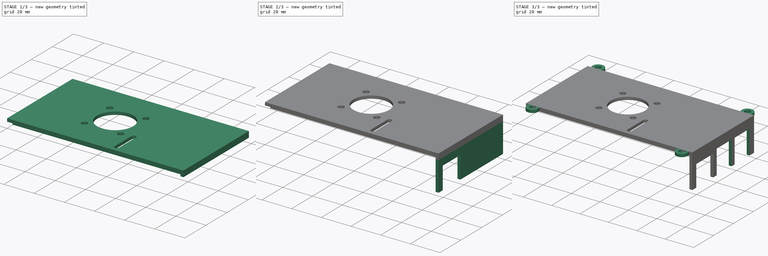
[diagram: build sequence overview — one tinted view per stage of 3, left to right]
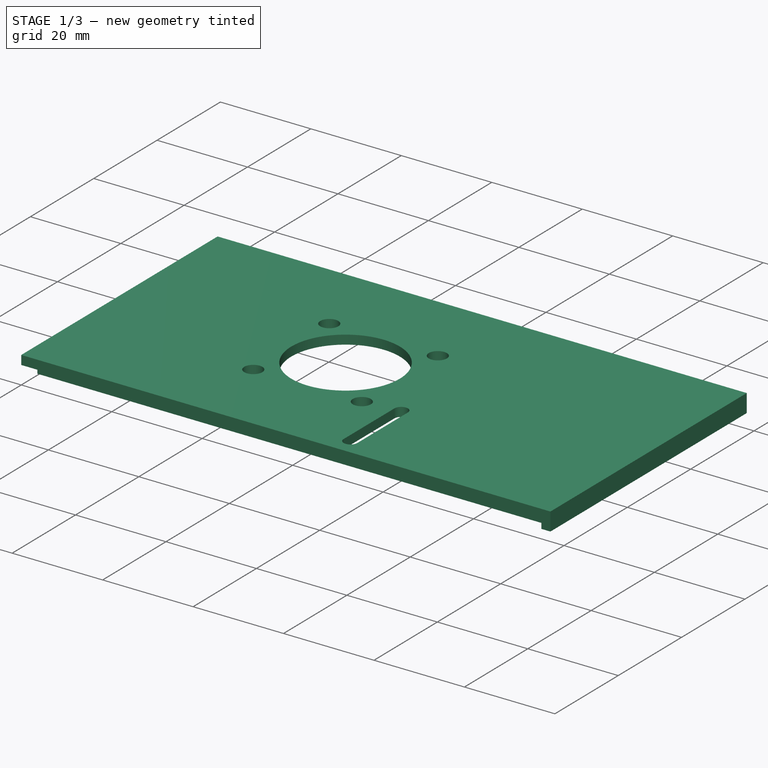
[diagram: stage 1 of 3 — iso view after this stage's code; geometry added in this stage tinted green]
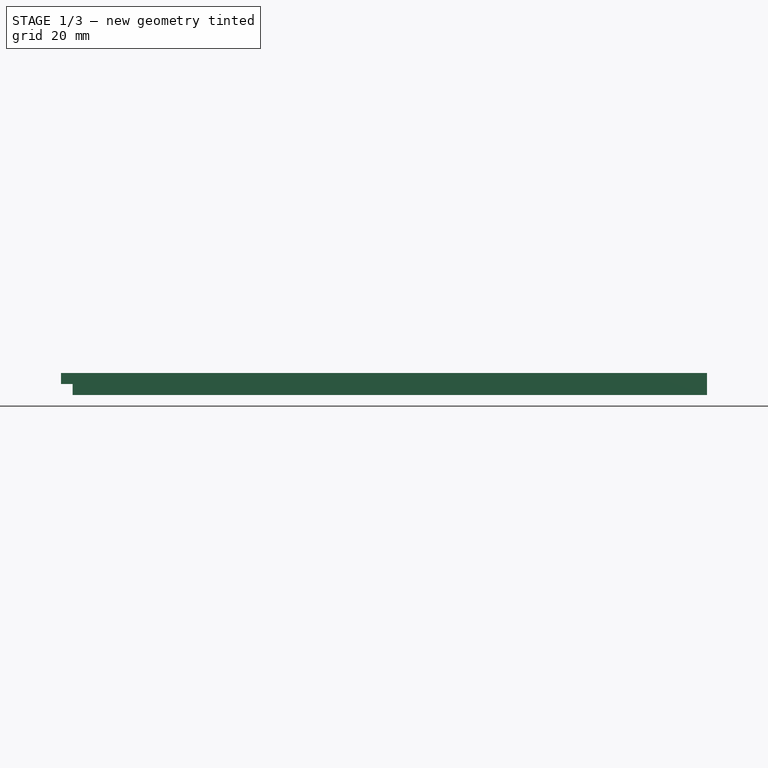
[diagram: stage 1 of 3 — front view after this stage's code; geometry added in this stage tinted green]
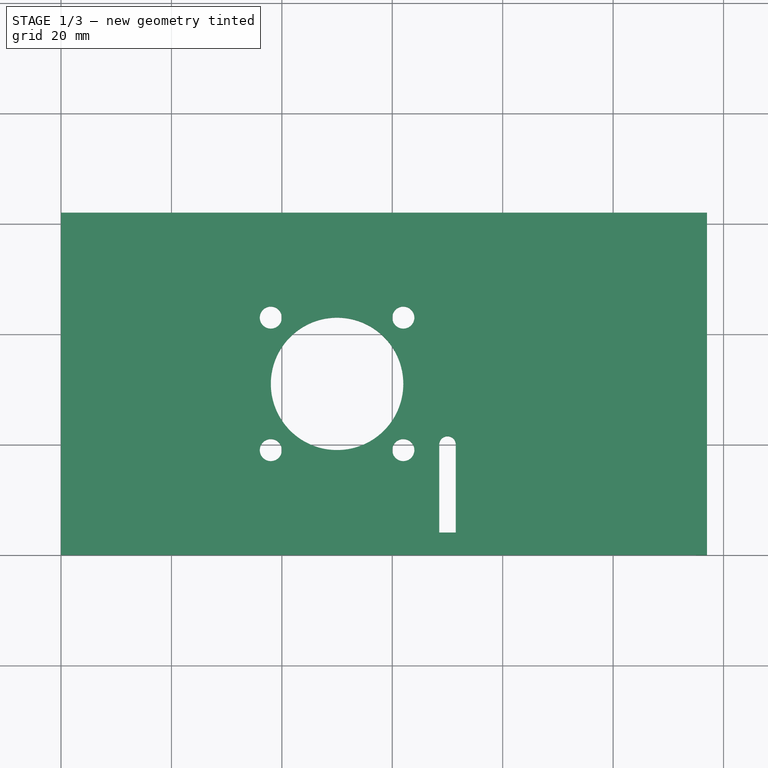
[diagram: stage 1 of 3 — top view after this stage's code; geometry added in this stage tinted green]
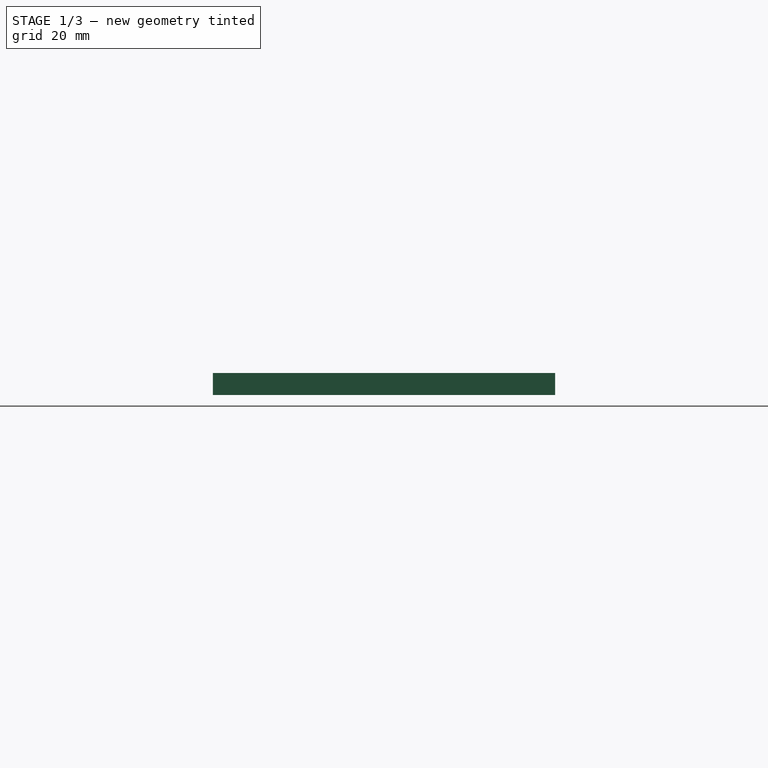
[diagram: stage 1 of 3 — right view after this stage's code; geometry added in this stage tinted green]
FCSTD DOCUMENT  (FreeCAD 0.19R23141 (Git))
Label: Lid
License: All rights reserved
LicenseURL: http://en.wikipedia.org/wiki/All_rights_reserved
objects: Sketcher::SketchObject×9, PartDesign::Pad×4, PartDesign::Pocket×4, PartDesign::Body×1
note: 26 computed .brp shape members not serialized (recipe doc carries the construction recipe); baked Part::Feature solids carry a one-line shape summary decoded from their .brp

FEATURE [Sketcher::SketchObject] Sketch
  MapMode = 5
  Support = -> [XY_Plane]
  sketch-geometry (13):
    g0: LineSegment StartX=0 StartY=0 StartZ=0 EndX=117 EndY=0 EndZ=0
    g1: LineSegment StartX=117 StartY=0 StartZ=0 EndX=117 EndY=62 EndZ=0
    g2: LineSegment StartX=117 StartY=62 StartZ=0 EndX=0 EndY=62 EndZ=0
    g3: LineSegment StartX=0 StartY=62 StartZ=0 EndX=0 EndY=0 EndZ=0
    g4: Circle CenterX=38 CenterY=43 CenterZ=0 NormalX=0 NormalY=0 NormalZ=1 AngleXU=0 Radius=2
    g5: Circle CenterX=62 CenterY=43 CenterZ=0 NormalX=0 NormalY=0 NormalZ=1 AngleXU=0 Radius=2
    g6: Circle CenterX=38 CenterY=19 CenterZ=0 NormalX=0 NormalY=0 NormalZ=1 AngleXU=0 Radius=2
    g7: Circle CenterX=62 CenterY=19 CenterZ=0 NormalX=0 NormalY=0 NormalZ=1 AngleXU=0 Radius=2
    g8: Circle CenterX=50 CenterY=31 CenterZ=0 NormalX=0 NormalY=0 NormalZ=1 AngleXU=0 Radius=12
    g9: ArcOfCircle CenterX=70 CenterY=20 CenterZ=0 NormalX=0 NormalY=0 NormalZ=1 AngleXU=0 Radius=1.5 StartAngle=-9.68e-14 EndAngle=3.14159
    g10: ArcOfCircle CenterX=70 CenterY=4 CenterZ=0 NormalX=0 NormalY=0 NormalZ=1 AngleXU=0 Radius=1.5 StartAngle=3.14159 EndAngle=6.28319
    g11: LineSegment StartX=68.5 StartY=20 StartZ=0 EndX=68.5 EndY=4 EndZ=0
    g12: LineSegment StartX=71.5 StartY=20 StartZ=0 EndX=71.5 EndY=4 EndZ=0
  constraints (36):
    c: Coincident(g0,g1)
    c: Coincident(g1,g2)
    c: Coincident(g2,g3)
    c: Coincident(g3,g0)
    c: Horizontal(g0)
    c: Horizontal(g2)
    c: Vertical(g1)
    c: Vertical(g3)
    c: Coincident(g0,g-1)
    c: DistanceX(g2,g2) = 117
    c: DistanceY(g3,g3) = 62
    c: Diameter(g4) = 4
    c: Equal(g4,g5) = 4
    c: Equal(g4,g6) = 4
    c: Equal(g4,g7) = 4
    c: DistanceX(g4,g5) = 24
    c: DistanceX(g6,g7) = 24
    c: DistanceY(g6,g4) = 24
    c: DistanceY(g7,g5) = 24
    c: Diameter(g8) = 24
    c: DistanceX(g8,g5) = 12
    c: DistanceY(g8,g5) = 12
    c: DistanceX(g8,g7) = 12
    c: DistanceY(g8,g4) = 12
    c: DistanceX(g7,g0) = 55
    c: Tangent(g9,g12)
    c: Tangent(g9,g11)
    c: Tangent(g11,g10)
    c: Tangent(g12,g10)
    c: Vertical(g11)
    c: Equal(g9,g10)
    c: DistanceX(g9,g9) = 3
    c: DistanceY(g10,g9) = 16
    c: DistanceX(g9,g1) = 47
    c: DistanceY(g0,g8) = 31
    c: DistanceY(g0,g10) = 4
FEATURE [PartDesign::Pad] Pad  label="Main Body with holes"
  Direction = (1,1,1)
  Length = 2
  Length2 = 100
  Profile = -> Sketch
  Type = 0
FEATURE [Sketcher::SketchObject] Sketch001
  ExternalGeometry = -> [Pad]
  MapMode = 5
  Placement = pos=(0,0,0) rot=(1,0,0;3.14159rad)
  Support = -> [Pad]
  sketch-geometry (16):
    g0: LineSegment StartX=2.1 StartY=-2.1 StartZ=0 EndX=117 EndY=-2.1 EndZ=0
    g1: LineSegment StartX=117 StartY=-2.1 StartZ=0 EndX=117 EndY=-59.9 EndZ=0
    g2: LineSegment StartX=117 StartY=-59.9 StartZ=0 EndX=2.1 EndY=-59.9 EndZ=0
    g3: LineSegment StartX=2.1 StartY=-59.9 StartZ=0 EndX=2.1 EndY=-2.1 EndZ=0
    g4: LineSegment StartX=4.1 StartY=-4.1 StartZ=0 EndX=115 EndY=-4.1 EndZ=0
    g5: LineSegment StartX=115 StartY=-4.1 StartZ=0 EndX=115 EndY=-57.9 EndZ=0
    g6: LineSegment StartX=115 StartY=-57.9 StartZ=0 EndX=4.1 EndY=-57.9 EndZ=0
    g7: LineSegment StartX=4.1 StartY=-57.9 StartZ=0 EndX=4.1 EndY=-4.1 EndZ=0
    g8: LineSegment StartX=115 StartY=0 StartZ=0 EndX=117 EndY=0 EndZ=0
    g9: LineSegment StartX=117 StartY=0 StartZ=0 EndX=117 EndY=-2.1 EndZ=0
    g10: LineSegment StartX=117 StartY=-2.1 StartZ=0 EndX=115 EndY=-2.1 EndZ=0
    g11: LineSegment StartX=115 StartY=-2.1 StartZ=0 EndX=115 EndY=0 EndZ=0
    g12: LineSegment StartX=115 StartY=-59.9 StartZ=0 EndX=117 EndY=-59.9 EndZ=0
    g13: LineSegment StartX=117 StartY=-59.9 StartZ=0 EndX=117 EndY=-62 EndZ=0
    g14: LineSegment StartX=117 StartY=-62 StartZ=0 EndX=115 EndY=-62 EndZ=0
    g15: LineSegment StartX=115 StartY=-62 StartZ=0 EndX=115 EndY=-59.9 EndZ=0
  constraints (46):
    c: Coincident(g0,g1)
    c: Coincident(g1,g2)
    c: Coincident(g2,g3)
    c: Coincident(g3,g0)
    c: Horizontal(g0)
    c: Horizontal(g2)
    c: Vertical(g1)
    c: Vertical(g3)
    c: Coincident(g4,g5)
    c: Coincident(g5,g6)
    c: Coincident(g6,g7)
    c: Coincident(g7,g4)
    c: Horizontal(g4)
    c: Horizontal(g6)
    c: Vertical(g5)
    c: Vertical(g7)
    c: DistanceX(g-1,g0) = 2.1
    c: DistanceY(g0,g-1) = 2.1
    c: DistanceX(g0,g4) = 2
    c: DistanceY(g4,g0) = 2
    c: DistanceY(g-3,g2) = 2.1
    c: DistanceY(g2,g6) = 2
    c: DistanceX(g0,g-4) = 0
    c: DistanceX(g4,g0) = 2
    c: Coincident(g8,g9)
    c: Coincident(g9,g10)
    c: Coincident(g10,g11)
    c: Coincident(g11,g8)
    c: Horizontal(g8)
    c: Horizontal(g10)
    c: Vertical(g9)
    c: Vertical(g11)
    c: Coincident(g12,g13)
    c: Coincident(g13,g14)
    c: Coincident(g14,g15)
    c: Coincident(g15,g12)
    c: Horizontal(g12)
    c: Horizontal(g14)
    c: Vertical(g13)
    c: Vertical(g15)
    c: DistanceX(g8,g8) = 2
    c: DistanceY(g9,g9) = 2.1
    c: Coincident(g8,g-4)
    c: DistanceY(g13,g13) = 2.1
    c: DistanceX(g14,g13) = 2
    c: Coincident(g1,g12)
FEATURE [PartDesign::Pad] Pad001  label="Inner Lip"
  BaseFeature = -> Pad
  Direction = (1,1,1)
  Length = 2
  Length2 = 100
  Profile = -> Sketch001
  Type = 0
FEATURE [Sketcher::SketchObject] Sketch003
  MapMode = 5
  Placement = pos=(0,0,2) rot=(0,0,1;0rad)
  sketch-geometry (4):
    g0: Circle CenterX=6 CenterY=64 CenterZ=0 NormalX=0 NormalY=0 NormalZ=1 AngleXU=0 Radius=2
    g1: Circle CenterX=113 CenterY=64 CenterZ=0 NormalX=0 NormalY=0 NormalZ=1 AngleXU=0 Radius=2
    g2: Circle CenterX=6 CenterY=-2 CenterZ=0 NormalX=0 NormalY=0 NormalZ=1 AngleXU=0 Radius=2
    g3: Circle CenterX=113 CenterY=-2 CenterZ=0 NormalX=0 NormalY=0 NormalZ=1 AngleXU=0 Radius=2
  constraints (4):
    c: Diameter(g0) = 4
    c: Diameter(g1) = 4
    c: Diameter(g3) = 4
    c: Diameter(g2) = 4
FEATURE [PartDesign::Pocket] Pocket  label="Bolt Ear Holes"
  BaseFeature = -> Pad001
  Length = 2
  Length2 = 100
  Profile = -> Sketch003
  Type = 0
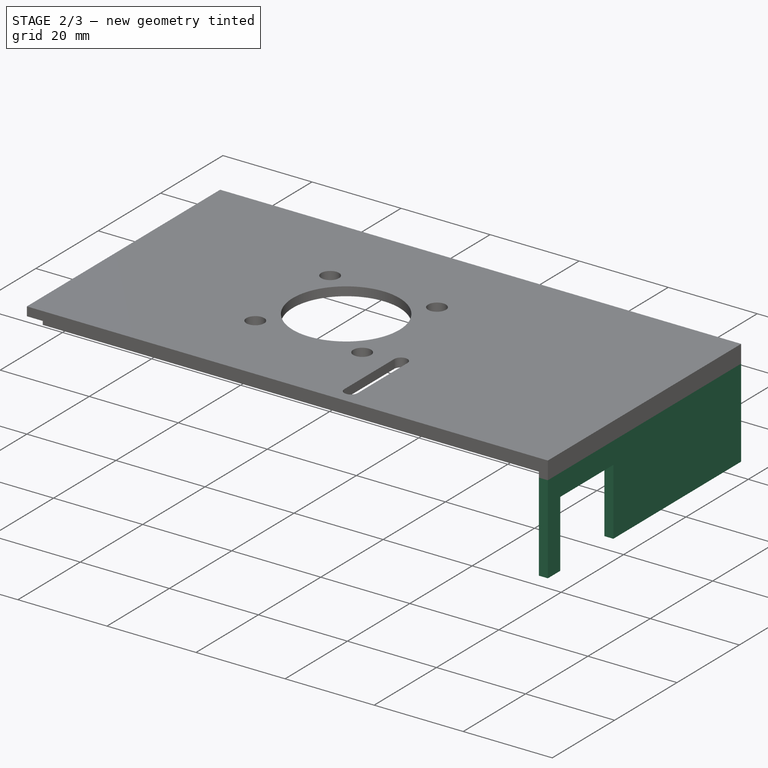
[diagram: stage 2 of 3 — iso view after this stage's code; geometry added in this stage tinted green]
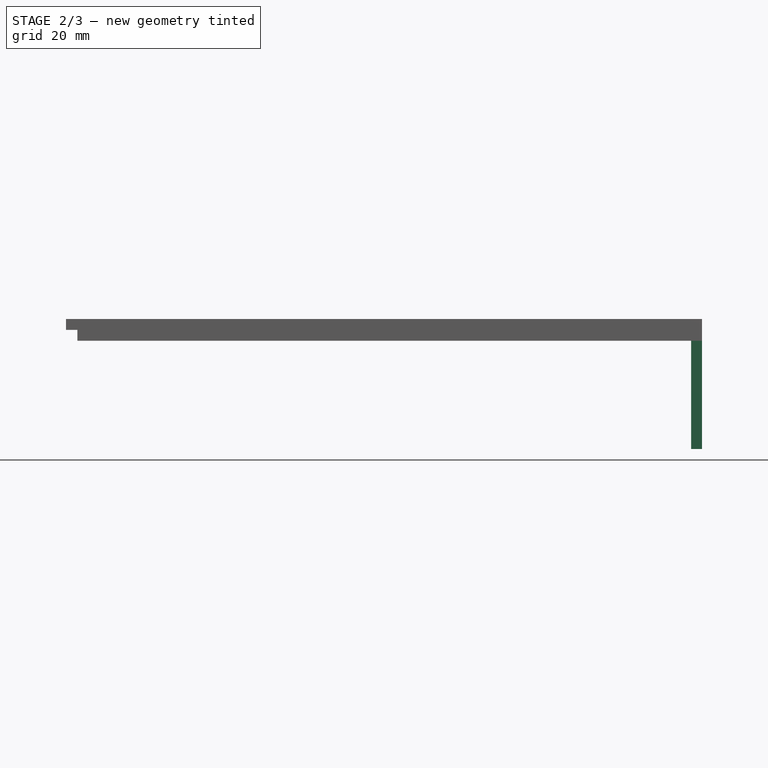
[diagram: stage 2 of 3 — front view after this stage's code; geometry added in this stage tinted green]
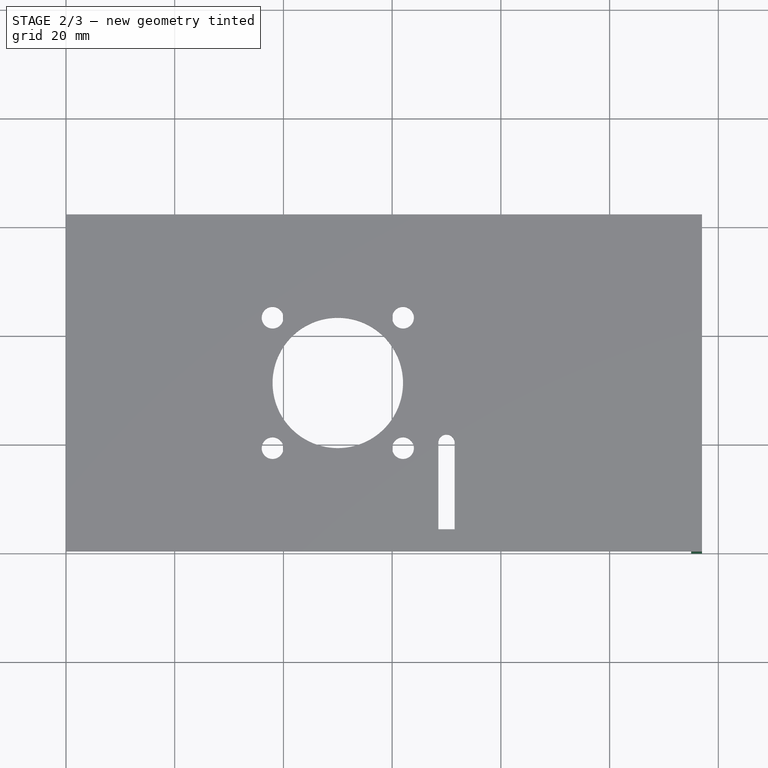
[diagram: stage 2 of 3 — top view after this stage's code; geometry added in this stage tinted green]
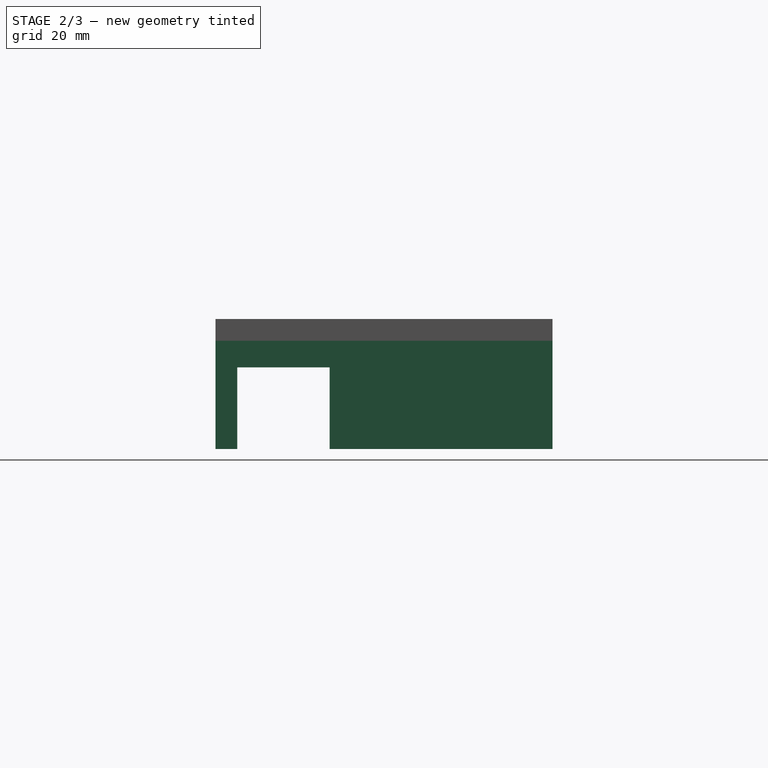
[diagram: stage 2 of 3 — right view after this stage's code; geometry added in this stage tinted green]
FEATURE [Sketcher::SketchObject] Sketch004
  MapMode = 5
  Placement = pos=(68.5,0,0) rot=(0.57735,0.57735,0.57735;2.0944rad)
  Support = -> [Pad001]
FEATURE [Sketcher::SketchObject] Sketch005
  ExternalGeometry = -> [Pad001]
  MapMode = 5
  Placement = pos=(0,0,-2) rot=(1,0,0;3.14159rad)
  Support = -> [Pad001]
  sketch-geometry (4):
    g0: LineSegment StartX=115 StartY=0 StartZ=0 EndX=117 EndY=0 EndZ=0
    g1: LineSegment StartX=117 StartY=0 StartZ=0 EndX=117 EndY=-62 EndZ=0
    g2: LineSegment StartX=117 StartY=-62 StartZ=0 EndX=115 EndY=-62 EndZ=0
    g3: LineSegment StartX=115 StartY=-62 StartZ=0 EndX=115 EndY=0 EndZ=0
  constraints (11):
    c: Coincident(g0,g1)
    c: Coincident(g1,g2)
    c: Coincident(g2,g3)
    c: Coincident(g3,g0)
    c: Horizontal(g0)
    c: Horizontal(g2)
    c: Vertical(g1)
    c: Vertical(g3)
    c: DistanceX(g2,g2) = 2
    c: DistanceY(g1,g1) = 62
    c: Coincident(g0,g-5)
FEATURE [PartDesign::Pad] Pad002  label="Front Panel"
  BaseFeature = -> Pocket
  Direction = (1,1,1)
  Length = 19.9
  Length2 = 100
  Profile = -> Sketch005
  Type = 0
FEATURE [Sketcher::SketchObject] Sketch006
  ExternalGeometry = -> [Pad002]
  MapMode = 5
  Placement = pos=(0,0,-21.9) rot=(1,0,0;3.14159rad)
  Support = -> [Pad002]
  sketch-geometry (4):
    g0: LineSegment StartX=115 StartY=-4 StartZ=0 EndX=117 EndY=-4 EndZ=0
    g1: LineSegment StartX=117 StartY=-4 StartZ=0 EndX=117 EndY=-21 EndZ=0
    g2: LineSegment StartX=117 StartY=-21 StartZ=0 EndX=115 EndY=-21 EndZ=0
    g3: LineSegment StartX=115 StartY=-21 StartZ=0 EndX=115 EndY=-4 EndZ=0
  constraints (12):
    c: Coincident(g0,g1)
    c: Coincident(g1,g2)
    c: Coincident(g2,g3)
    c: Coincident(g3,g0)
    c: Horizontal(g0)
    c: Horizontal(g2)
    c: Vertical(g1)
    c: Vertical(g3)
    c: DistanceX(g0,g0) = 2
    c: DistanceY(g1,g1) = 17
    c: DistanceX(g-3,g0) = 0
    c: DistanceY(g0,g-3) = 4
FEATURE [PartDesign::Pocket] Pocket001  label="Ethernet Cutout"
  BaseFeature = -> Pad002
  Length = 15
  Length2 = 100
  Profile = -> Sketch006
  Type = 0
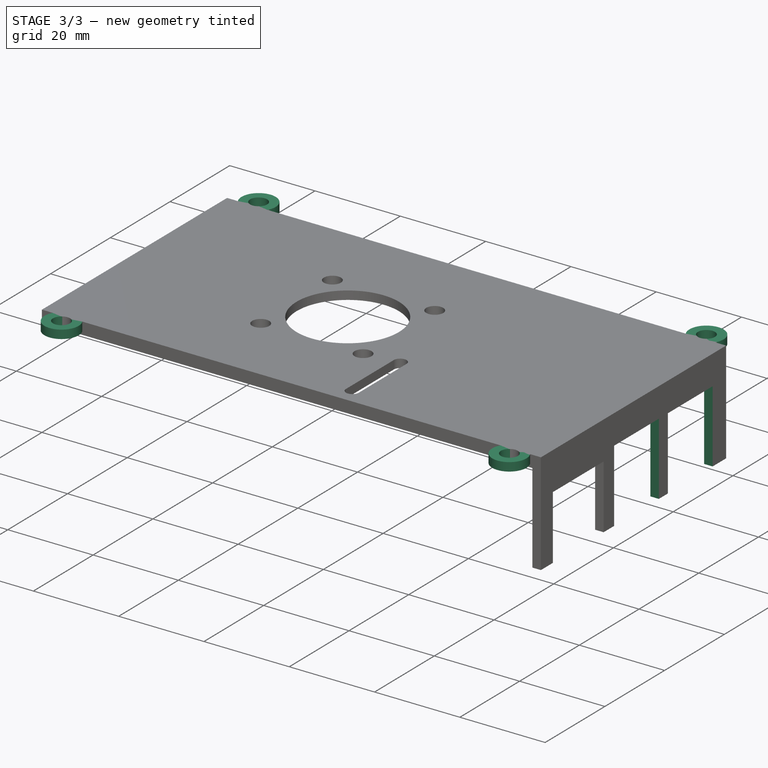
[diagram: stage 3 of 3 — iso view after this stage's code; geometry added in this stage tinted green]
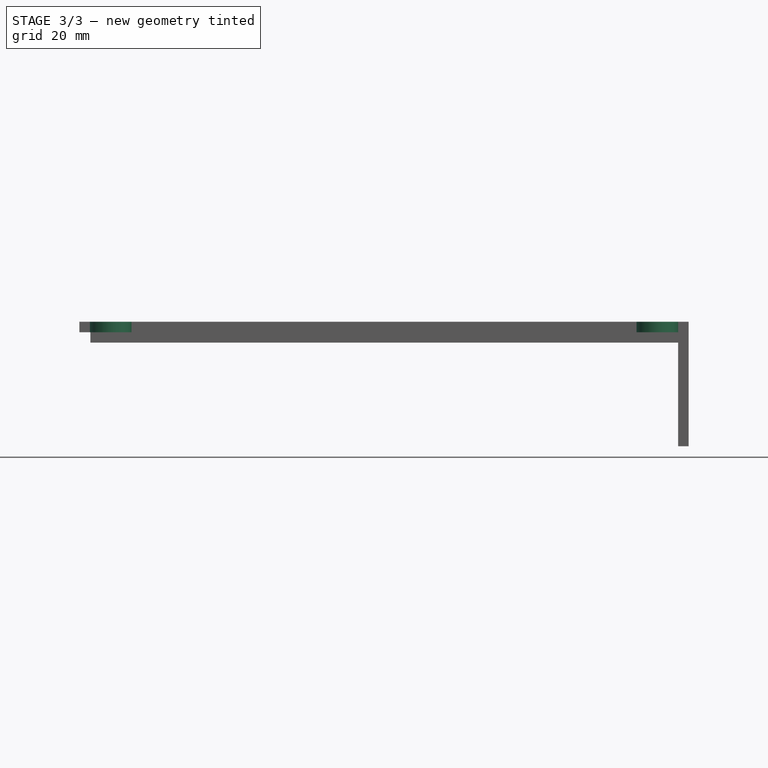
[diagram: stage 3 of 3 — front view after this stage's code; geometry added in this stage tinted green]
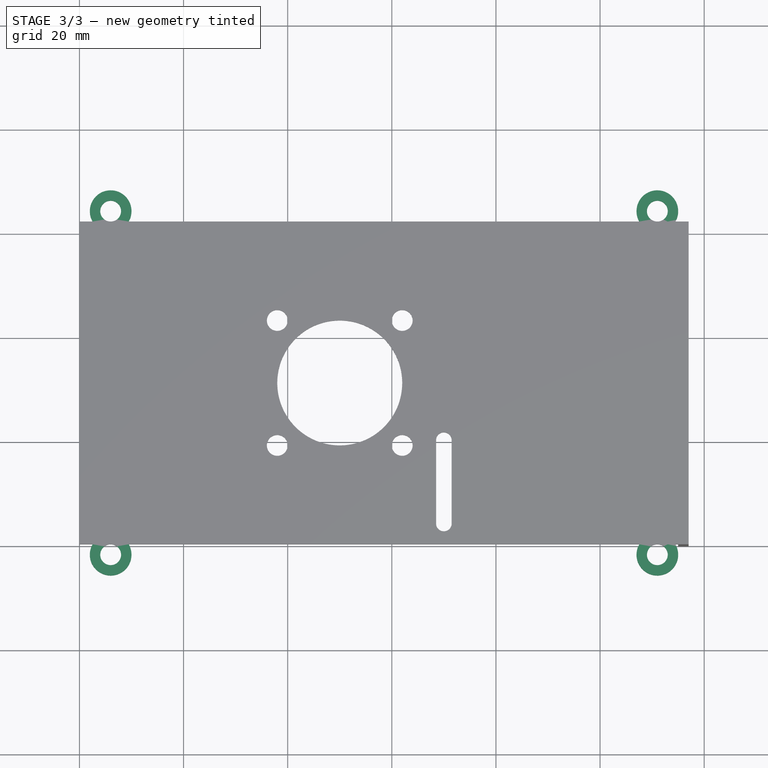
[diagram: stage 3 of 3 — top view after this stage's code; geometry added in this stage tinted green]
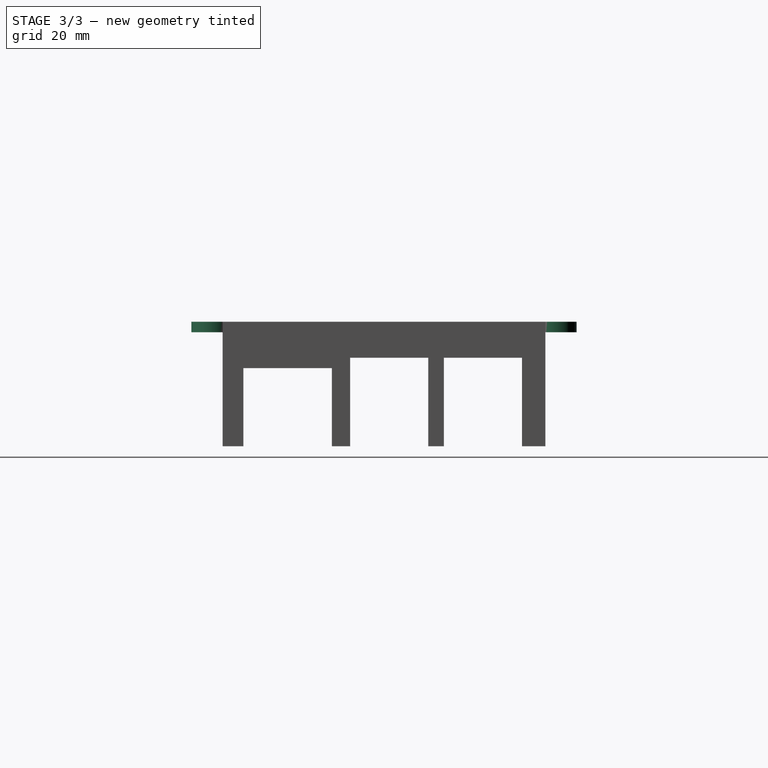
[diagram: stage 3 of 3 — right view after this stage's code; geometry added in this stage tinted green]
FEATURE [Sketcher::SketchObject] Sketch007
  ExternalGeometry = -> [Pocket001]
  MapMode = 5
  Placement = pos=(0,0,-21.9) rot=(1,0,0;3.14159rad)
  Support = -> [Pocket001]
  sketch-geometry (8):
    g0: LineSegment StartX=115 StartY=-24.5 StartZ=0 EndX=117 EndY=-24.5 EndZ=0
    g1: LineSegment StartX=117 StartY=-24.5 StartZ=0 EndX=117 EndY=-39.5 EndZ=0
    g2: LineSegment StartX=117 StartY=-39.5 StartZ=0 EndX=115 EndY=-39.5 EndZ=0
    g3: LineSegment StartX=115 StartY=-39.5 StartZ=0 EndX=115 EndY=-24.5 EndZ=0
    g4: LineSegment StartX=115 StartY=-42.5 StartZ=0 EndX=117 EndY=-42.5 EndZ=0
    g5: LineSegment StartX=117 StartY=-42.5 StartZ=0 EndX=117 EndY=-57.5 EndZ=0
    g6: LineSegment StartX=117 StartY=-57.5 StartZ=0 EndX=115 EndY=-57.5 EndZ=0
    g7: LineSegment StartX=115 StartY=-57.5 StartZ=0 EndX=115 EndY=-42.5 EndZ=0
  constraints (24):
    c: Coincident(g0,g1)
    c: Coincident(g1,g2)
    c: Coincident(g2,g3)
    c: Coincident(g3,g0)
    c: Horizontal(g0)
    c: Horizontal(g2)
    c: Vertical(g1)
    c: Vertical(g3)
    c: Coincident(g4,g5)
    c: Coincident(g5,g6)
    c: Coincident(g6,g7)
    c: Coincident(g7,g4)
    c: Horizontal(g4)
    c: Horizontal(g6)
    c: Vertical(g5)
    c: Vertical(g7)
    c: DistanceX(g0,g0) = 2
    c: DistanceX(g4,g4) = 2
    c: DistanceY(g1,g1) = 15
    c: DistanceY(g7,g7) = 15
    c: DistanceX(g-3,g0) = 0
    c: DistanceY(g0,g-3) = 3.5
    c: DistanceX(g1,g4) = 0
    c: DistanceY(g4,g1) = 3
FEATURE [PartDesign::Pocket] Pocket002  label="USB Port Cutout"
  BaseFeature = -> Pocket001
  Length = 17
  Length2 = 100
  Profile = -> Sketch007
  Type = 0
FEATURE [Sketcher::SketchObject] Sketch008
  ExternalGeometry = -> [Pocket002]
  MapMode = 5
  Placement = pos=(0,0,2) rot=(0,0,1;0rad)
  Support = -> [Pocket002]
  sketch-geometry (8):
    g0: Circle CenterX=6 CenterY=64 CenterZ=0 NormalX=0 NormalY=0 NormalZ=1 AngleXU=0 Radius=4
    g1: Circle CenterX=6 CenterY=64 CenterZ=0 NormalX=0 NormalY=0 NormalZ=1 AngleXU=0 Radius=2
    g2: Circle CenterX=111 CenterY=64 CenterZ=0 NormalX=0 NormalY=0 NormalZ=1 AngleXU=0 Radius=4
    g3: Circle CenterX=111 CenterY=64 CenterZ=0 NormalX=0 NormalY=0 NormalZ=1 AngleXU=0 Radius=2
    g4: Circle CenterX=6 CenterY=-2 CenterZ=0 NormalX=0 NormalY=0 NormalZ=1 AngleXU=0 Radius=4
    g5: Circle CenterX=6 CenterY=-2 CenterZ=0 NormalX=0 NormalY=0 NormalZ=1 AngleXU=0 Radius=2
    g6: Circle CenterX=111 CenterY=-2 CenterZ=0 NormalX=0 NormalY=0 NormalZ=1 AngleXU=0 Radius=4
    g7: Circle CenterX=111 CenterY=-2 CenterZ=0 NormalX=0 NormalY=0 NormalZ=1 AngleXU=0 Radius=2
  constraints (20):
    c: DistanceX(g-4,g0) = 6
    c: DistanceY(g-4,g0) = 2
    c: Coincident(g1,g0)
    c: Diameter(g1) = 4
    c: Diameter(g0) = 8
    c: Coincident(g3,g2)
    c: Equal(g1,g3) = 4
    c: Equal(g0,g2) = 8
    c: DistanceX(g2,g-3) = 6
    c: DistanceY(g-3,g2) = 2
    c: Coincident(g5,g4)
    c: Equal(g1,g5) = 4
    c: Equal(g0,g4) = 8
    c: Coincident(g7,g6)
    c: Equal(g1,g7) = 4
    c: Equal(g0,g6) = 8
    c: DistanceX(g-1,g4) = 6
    c: DistanceX(g6,g-3) = 6
    c: DistanceY(g6,g-3) = 2
    c: DistanceY(g4,g-1) = 2
FEATURE [PartDesign::Pad] Pad003  label="Case Bolts"
  BaseFeature = -> Pocket002
  Direction = (1,1,1)
  Length = 2
  Length2 = 100
  Profile = -> Sketch008
  Reversed = true
  Type = 0
FEATURE [Sketcher::SketchObject] Sketch009
  ExternalGeometry = -> [Pad003]
  MapMode = 5
  Support = -> [Pad003]
  sketch-geometry (1):
    g0: Circle CenterX=70 CenterY=4 CenterZ=0 NormalX=0 NormalY=0 NormalZ=1 AngleXU=0 Radius=1.5
  constraints (2):
    c: Coincident(g0,g-3)
    c: PointOnObject(g-3,g0)
FEATURE [PartDesign::Pocket] Pocket003  label="Camera trim"
  BaseFeature = -> Pad003
  Length = 5
  Length2 = 100
  Profile = -> Sketch009
  Type = 0
FEATURE [PartDesign::Body] Body
  Group = -> [Sketch,Pad,Sketch001,Pad001,Sketch003,Pocket,Sketch004,Sketch005,Pad002,Sketch006,Pocket001,Sketch007,Pocket002,Sketch008,Pad003,Sketch009,Pocket003]
  Origin = -> Origin
  Tip = -> Pocket003
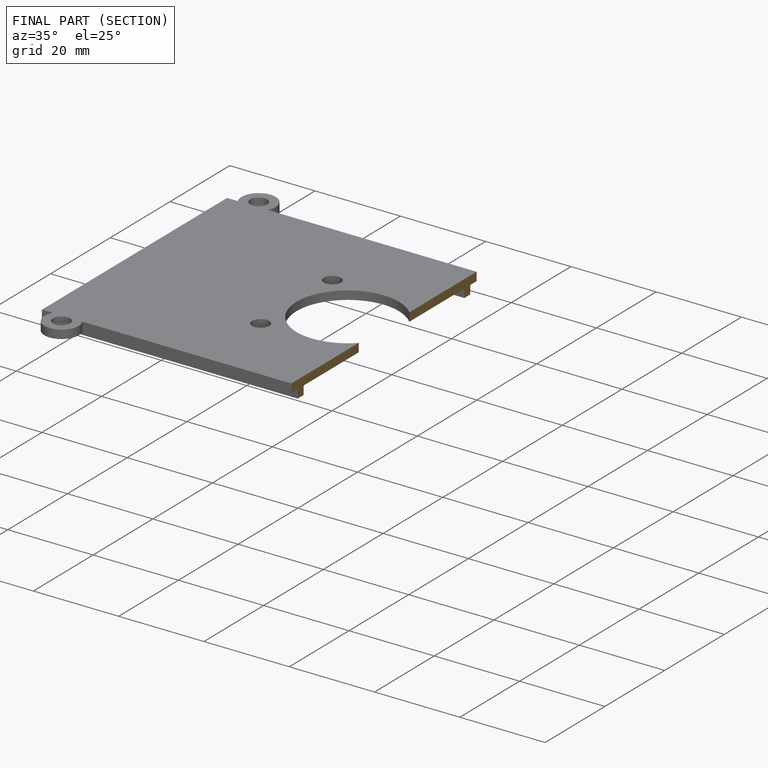
[diagram: finished part — half-section view (interior)]
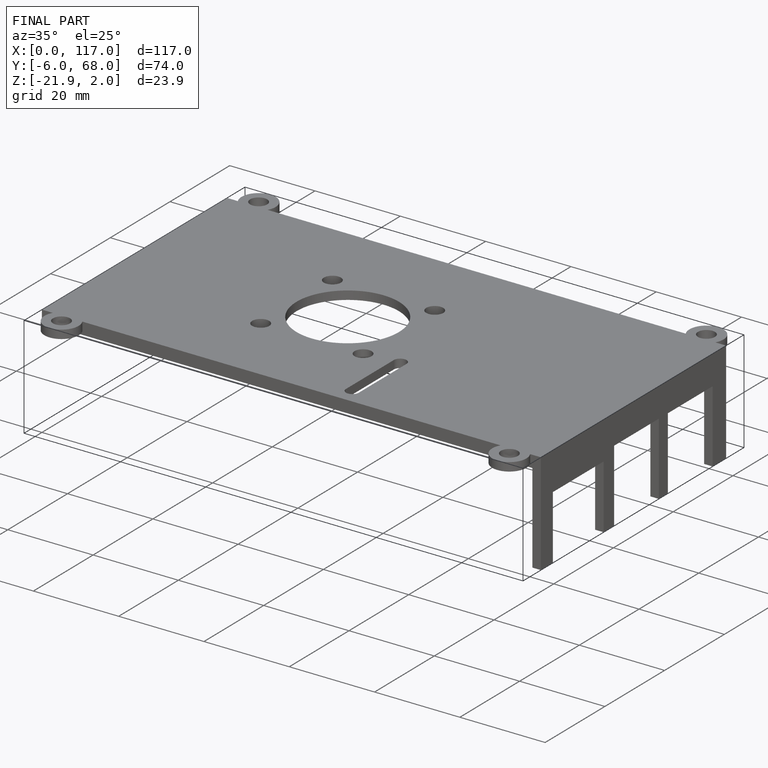
[diagram: finished part — iso view with bounding-box wireframe]
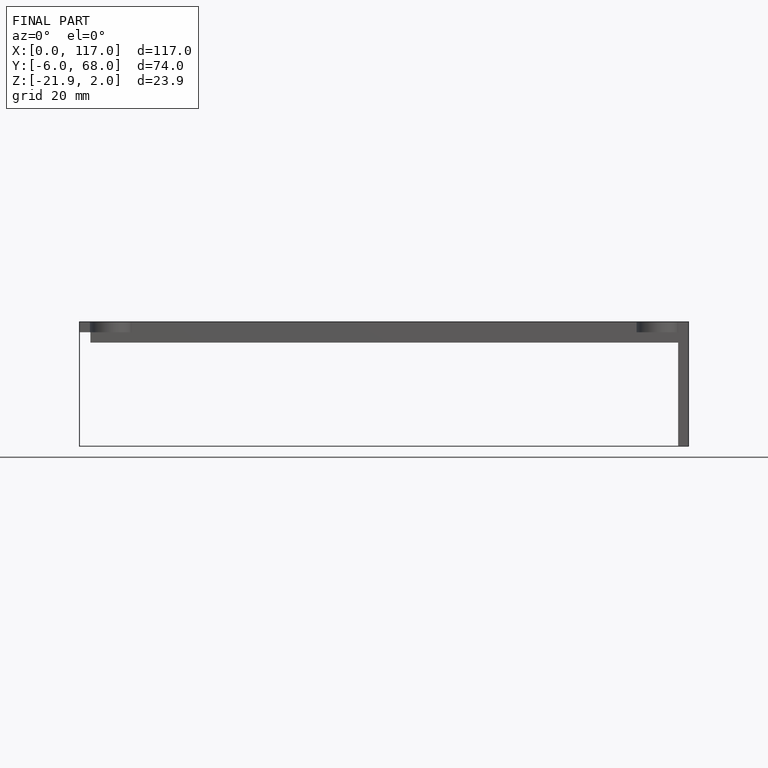
[diagram: finished part — front view with bounding-box wireframe]
